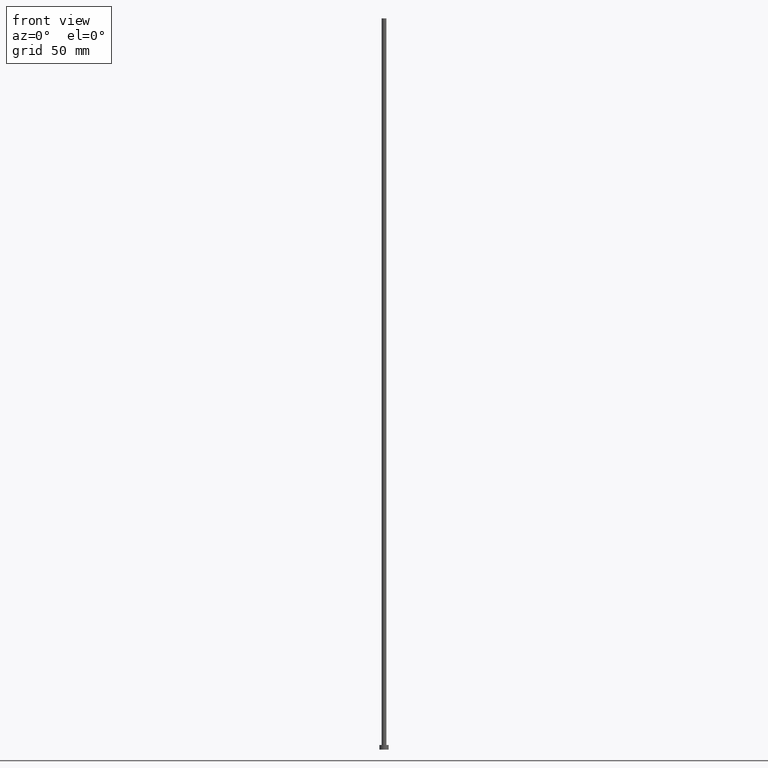
[diagram: clean part render]
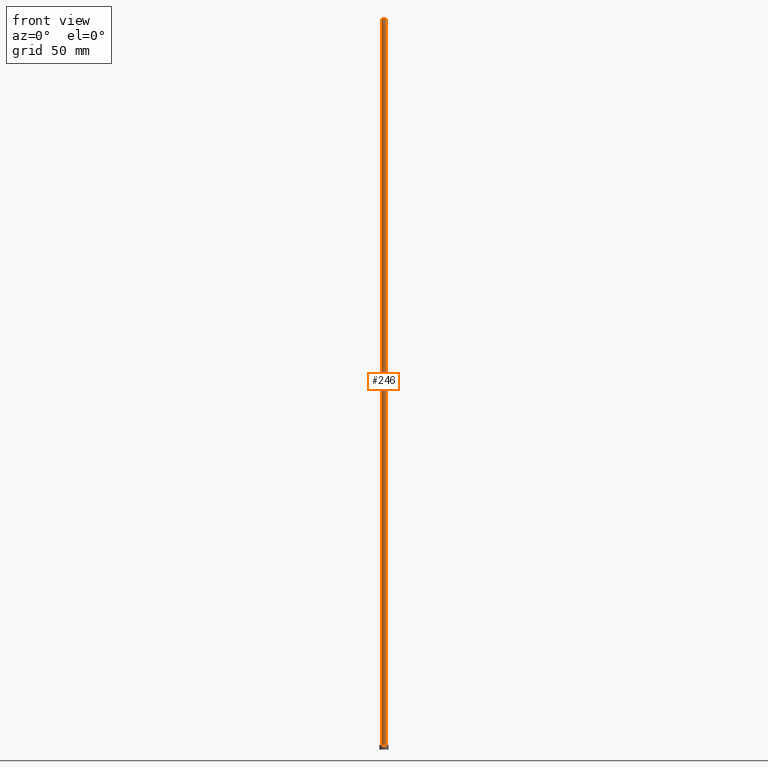
[diagram: same view with one face highlighted and labeled with its STEP entity id]
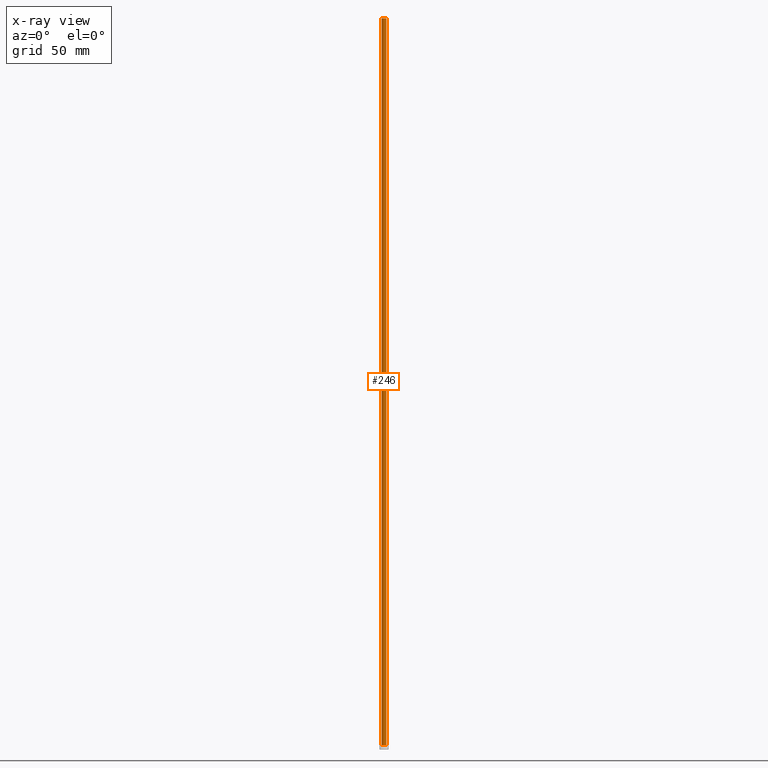
[diagram: x-ray of the same camera — body ghosted, the highlighted face saturated]
A machine part, front view. The second image highlights one B-rep face of the part: STEP entity #246.
The next image is the same camera in x-ray: the body ghosted, the highlighted face saturated — about 0% of this face is hidden behind the body in this view.
In plain terms, the highlighted cylindrical surface (edge-blend (fillet) strip) has radius 1 mm, axis along (-0, -0, -1).
Its self-contained STEP definition (entity closure, byte-faithful):
#3 = CARTESIAN_POINT ( 'NONE',  ( 1.000000000000000000, 1.224646799147353207E-16, 315.0000000000000000 ) ) ;
#19 = CARTESIAN_POINT ( 'NONE',  ( 0.000000000000000000, 0.000000000000000000, 2.000000000000000000 ) ) ;
#22 = AXIS2_PLACEMENT_3D ( 'NONE', #136, #74, #217 ) ;
#29 = AXIS2_PLACEMENT_3D ( 'NONE', #79, #220, #31 ) ;
#31 = DIRECTION ( 'NONE',  ( 1.000000000000000000, 0.000000000000000000, 0.000000000000000000 ) ) ;
#32 = CARTESIAN_POINT ( 'NONE',  ( 1.000000000000000000, 1.224646799147353207E-16, 2.000000000000000000 ) ) ;
#34 = LINE ( 'NONE', #202, #45 ) ;
#40 = ORIENTED_EDGE ( 'NONE', *, *, #77, .T. ) ;
#42 = CIRCLE ( 'NONE', #29, 1.000000000000000000 ) ;
#45 = VECTOR ( 'NONE', #81, 1000.000000000000000 ) ;
#54 = DIRECTION ( 'NONE',  ( 1.000000000000000000, 0.000000000000000000, 0.000000000000000000 ) ) ;
#57 = CARTESIAN_POINT ( 'NONE',  ( 1.000000000000000000, 1.224646799147353207E-16, 315.0000000000000000 ) ) ;
#59 = AXIS2_PLACEMENT_3D ( 'NONE', #19, #93, #54 ) ;
#67 = VERTEX_POINT ( 'NONE', #32 ) ;
#74 = DIRECTION ( 'NONE',  ( -0.000000000000000000, -0.000000000000000000, -1.000000000000000000 ) ) ;
#77 = EDGE_CURVE ( 'NONE', #222, #241, #34, .T. ) ;
#79 = CARTESIAN_POINT ( 'NONE',  ( 0.000000000000000000, 0.000000000000000000, 315.0000000000000000 ) ) ;
#81 = DIRECTION ( 'NONE',  ( -0.000000000000000000, -0.000000000000000000, -1.000000000000000000 ) ) ;
#87 = ORIENTED_EDGE ( 'NONE', *, *, #228, .F. ) ;
#93 = DIRECTION ( 'NONE',  ( 0.000000000000000000, 0.000000000000000000, 1.000000000000000000 ) ) ;
#95 = DIRECTION ( 'NONE',  ( -0.000000000000000000, -0.000000000000000000, -1.000000000000000000 ) ) ;
#103 = CARTESIAN_POINT ( 'NONE',  ( -1.000000000000000000, 0.000000000000000000, 2.000000000000000000 ) ) ;
#136 = CARTESIAN_POINT ( 'NONE',  ( 0.000000000000000000, 0.000000000000000000, 315.0000000000000000 ) ) ;
#138 = EDGE_CURVE ( 'NONE', #241, #67, #218, .T. ) ;
#151 = CYLINDRICAL_SURFACE ( 'NONE', #22, 1.000000000000000000 ) ;
#156 = FACE_OUTER_BOUND ( 'NONE', #237, .T. ) ;
#168 = LINE ( 'NONE', #3, #203 ) ;
#176 = EDGE_CURVE ( 'NONE', #227, #67, #168, .T. ) ;
#182 = CARTESIAN_POINT ( 'NONE',  ( -1.000000000000000000, 0.000000000000000000, 315.0000000000000000 ) ) ;
#202 = CARTESIAN_POINT ( 'NONE',  ( -1.000000000000000000, 0.000000000000000000, 315.0000000000000000 ) ) ;
#203 = VECTOR ( 'NONE', #95, 1000.000000000000000 ) ;
#217 = DIRECTION ( 'NONE',  ( -1.000000000000000000, 0.000000000000000000, 0.000000000000000000 ) ) ;
#218 = CIRCLE ( 'NONE', #59, 1.000000000000000000 ) ;
#220 = DIRECTION ( 'NONE',  ( 0.000000000000000000, 0.000000000000000000, 1.000000000000000000 ) ) ;
#222 = VERTEX_POINT ( 'NONE', #182 ) ;
#227 = VERTEX_POINT ( 'NONE', #57 ) ;
#228 = EDGE_CURVE ( 'NONE', #222, #227, #42, .T. ) ;
#231 = ORIENTED_EDGE ( 'NONE', *, *, #138, .T. ) ;
#237 = EDGE_LOOP ( 'NONE', ( #252, #87, #40, #231 ) ) ;
#241 = VERTEX_POINT ( 'NONE', #103 ) ;
#246 = ADVANCED_FACE ( 'NONE', ( #156 ), #151, .T. ) ;
#252 = ORIENTED_EDGE ( 'NONE', *, *, #176, .F. ) ;